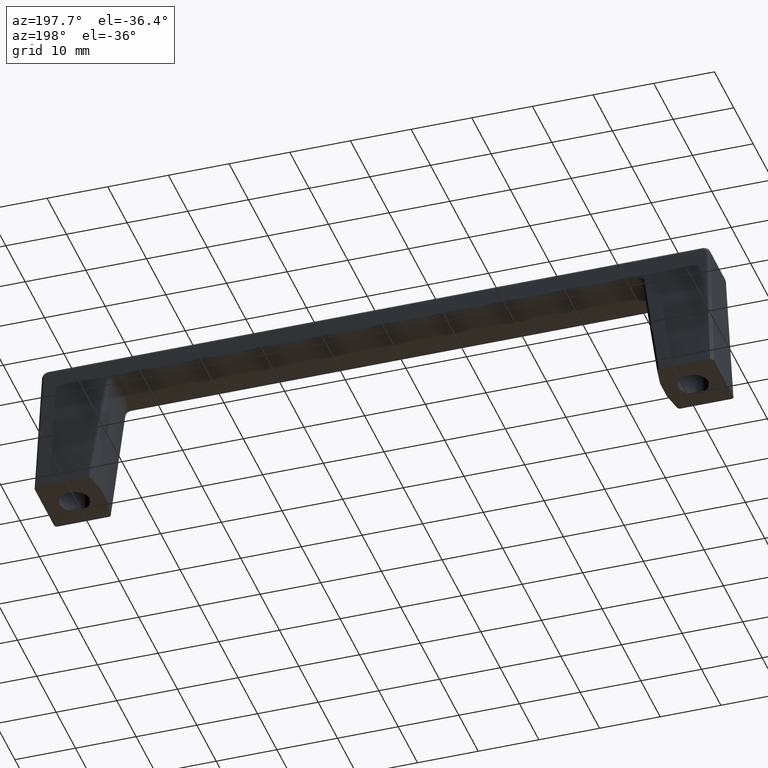
[diagram: clean part render]
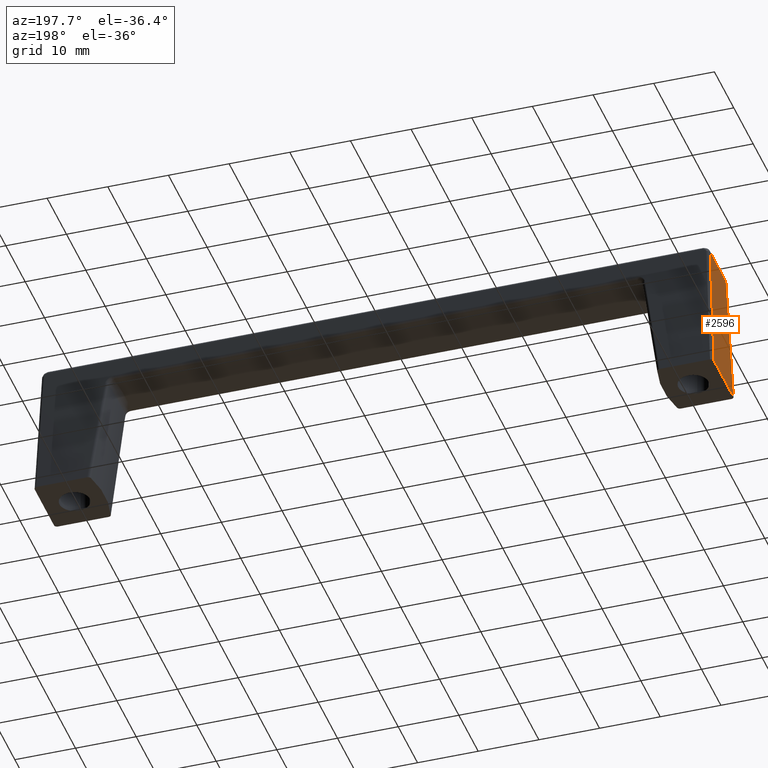
[diagram: same view with one face highlighted and labeled with its STEP entity id]
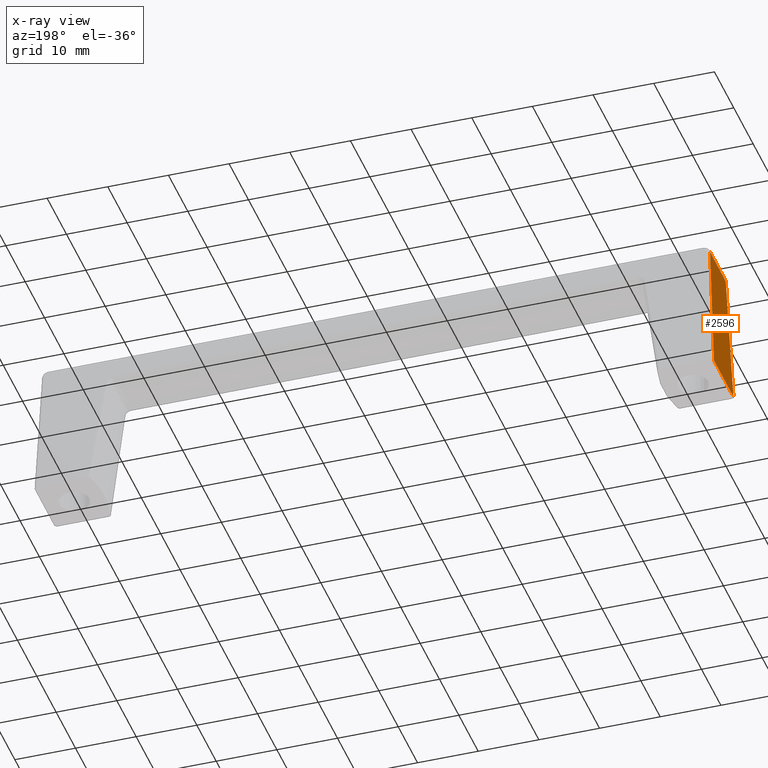
[diagram: x-ray of the same camera — body ghosted, the highlighted face saturated]
A machine part, auxiliary view. The second image highlights one B-rep face of the part: STEP entity #2596.
The next image is the same camera in x-ray: the body ghosted, the highlighted face saturated — about 0% of this face is hidden behind the body in this view.
In plain terms, the highlighted face is a freeform B-spline surface patch.
Its self-contained STEP definition (entity closure, byte-faithful):
#1663=CARTESIAN_POINT('',(-55.041781793214902,-4.042231952913090,22.043718932801401));
#1664=VERTEX_POINT('',#1663);
#1726=CARTESIAN_POINT('',(-55.999800000000000,-5.000471523240460,0.0));
#1727=VERTEX_POINT('',#1726);
#1747=CARTESIAN_POINT('',(-55.999800000000000,-5.000471523240460,0.0));
#1748=CARTESIAN_POINT('',(-55.041781793214902,-4.042231952913090,22.043718932801401));
#1749=QUASI_UNIFORM_CURVE('',1,(#1747,#1748),.UNSPECIFIED.,.F.,.U.);
#1750=EDGE_CURVE('',#1727,#1664,#1749,.T.);
#2026=CARTESIAN_POINT('',(-55.041781793214902,4.042231952913310,22.043718932801401));
#2027=VERTEX_POINT('',#2026);
#2085=CARTESIAN_POINT('',(-55.999800000000000,5.000471523240460,0.0));
#2086=VERTEX_POINT('',#2085);
#2102=CARTESIAN_POINT('',(-55.041781793214902,4.042231952913310,22.043718932801401));
#2103=CARTESIAN_POINT('',(-55.999800000000000,5.000471523240460,0.0));
#2104=QUASI_UNIFORM_CURVE('',1,(#2102,#2103),.UNSPECIFIED.,.F.,.U.);
#2105=EDGE_CURVE('',#2027,#2086,#2104,.T.);
#2148=CARTESIAN_POINT('',(-55.041781793214902,-4.042231952913090,22.043718932801401));
#2149=CARTESIAN_POINT('',(-55.041781793214902,4.042231952913310,22.043718932801401));
#2150=QUASI_UNIFORM_CURVE('',1,(#2148,#2149),.UNSPECIFIED.,.F.,.U.);
#2151=EDGE_CURVE('',#1664,#2027,#2150,.T.);
#2542=CARTESIAN_POINT('',(-55.999800000000000,5.000471523240460,0.0));
#2543=CARTESIAN_POINT('',(-55.999800000000000,-5.000471523240460,0.0));
#2544=QUASI_UNIFORM_CURVE('',1,(#2542,#2543),.UNSPECIFIED.,.F.,.U.);
#2545=EDGE_CURVE('',#2086,#1727,#2544,.T.);
#2585=CARTESIAN_POINT('',(-54.993928812622592,-5.500018702910112,23.144802029977861));
#2586=CARTESIAN_POINT('',(-56.047653031984609,-5.500018702910112,-1.101084279693674));
#2587=CARTESIAN_POINT('',(-54.993928812622592,5.500018881740909,23.144802029977861));
#2588=CARTESIAN_POINT('',(-56.047653031984609,5.500018881740909,-1.101084279693674));
#2589=B_SPLINE_SURFACE_WITH_KNOTS('',1,1,((#2585,#2587),(#2586,#2588)),.UNSPECIFIED.,.F.,.F.,.U.,(2,2),(2,2),(0.0,24.268772891763351),(0.0,11.000037584651020),.UNSPECIFIED.);
#2590=ORIENTED_EDGE('',*,*,#2151,.T.);
#2591=ORIENTED_EDGE('',*,*,#2105,.T.);
#2592=ORIENTED_EDGE('',*,*,#2545,.T.);
#2593=ORIENTED_EDGE('',*,*,#1750,.T.);
#2594=EDGE_LOOP('',(#2590,#2591,#2592,#2593));
#2595=FACE_OUTER_BOUND('',#2594,.T.);
#2596=ADVANCED_FACE('',(#2595),#2589,.F.);